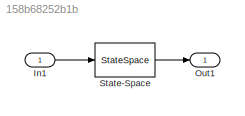
MODEL slx_158b68252b1b
KIND model
CONFIG AbsTol = auto
CONFIG EnableMultiTasking = off
CONFIG FixedStep = auto
CONFIG MaxStep = auto
CONFIG MinStep = auto
CONFIG RelTol = 1e-3
CONFIG SampleTimeConstraint = Unconstrained
CONFIG Solver = FixedStepAuto
CONFIG SolverName = FixedStepAuto
CONFIG StartTime = 0.0
CONFIG StopTime = 10.0
BLOCK [Inport] In1
  IconDisplay = Port number
BLOCK [Outport] Out1
  IconDisplay = Port number
BLOCK [StateSpace] State-Space
  A = [0 1;-p^2 -2*p]
  B = [0; p^2]
  C = [1 0]
  D = 0
  Ports = [1, 1]
  X0 = 0
LINE In1:1 -> State-Space:1
LINE State-Space:1 -> Out1:1
